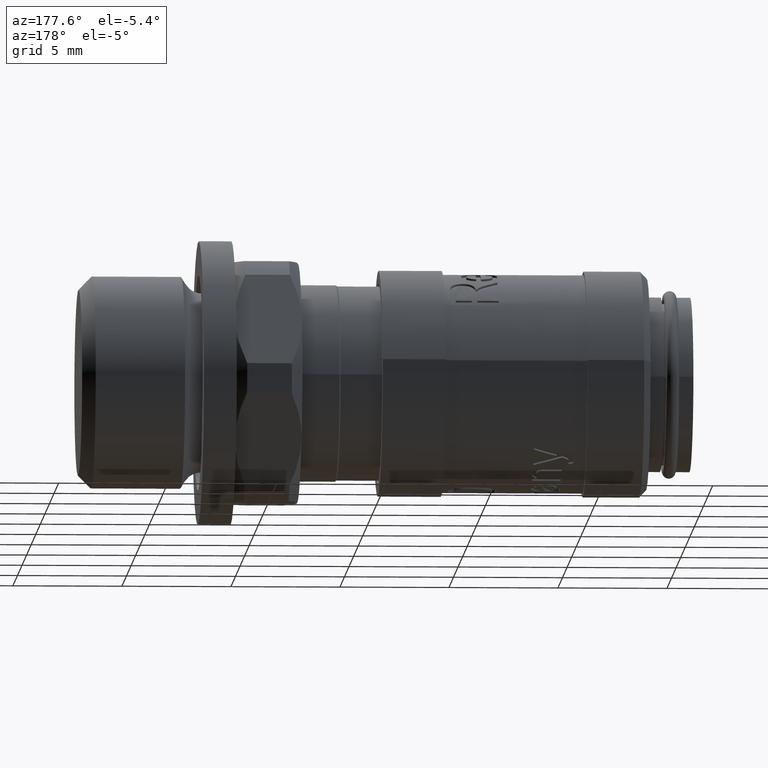
[diagram: clean part render]
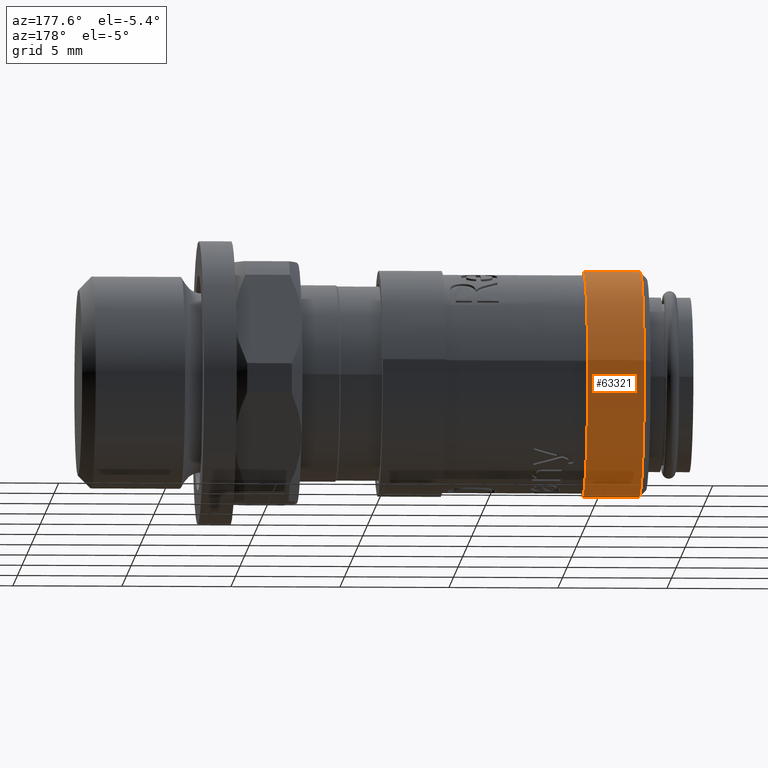
[diagram: same view with one face highlighted and labeled with its STEP entity id]
A machine part, auxiliary view. The second image highlights one B-rep face of the part: STEP entity #63321.
In plain terms, the highlighted cylindrical surface (bore or boss wall) has radius 5.175 mm, axis along (1, 0, 0).
Its self-contained STEP definition (entity closure, byte-faithful):
#63290=CARTESIAN_POINT('',(2.3,5.134121596033046,0.649169035881323));
#63291=VERTEX_POINT('',#63290);
#63292=CARTESIAN_POINT('',(2.3,0.0,0.0));
#63293=DIRECTION('',(-1.0,0.0,0.0));
#63294=DIRECTION('',(0.0,-0.99210079150397,-0.125443291957744));
#63295=AXIS2_PLACEMENT_3D('',#63292,#63293,#63294);
#63296=CIRCLE('',#63295,5.175);
#63297=EDGE_CURVE('',#63291,#63291,#63296,.T.);
#63302=CARTESIAN_POINT('',(3.45,0.0,0.0));
#63303=DIRECTION('',(1.0,0.0,0.0));
#63304=DIRECTION('',(0.0,0.99210079150397,0.125443291957744));
#63305=AXIS2_PLACEMENT_3D('',#63302,#63303,#63304);
#63306=CYLINDRICAL_SURFACE('',#63305,5.175000000000001);
#63307=CARTESIAN_POINT('',(4.900000000000001,5.134121596033046,0.649169035881323));
#63308=VERTEX_POINT('',#63307);
#63309=CARTESIAN_POINT('',(4.900000000000001,0.0,0.0));
#63310=DIRECTION('',(1.0,0.0,0.0));
#63311=DIRECTION('',(0.0,0.99210079150397,0.125443291957744));
#63312=AXIS2_PLACEMENT_3D('',#63309,#63310,#63311);
#63313=CIRCLE('',#63312,5.175);
#63314=EDGE_CURVE('',#63308,#63308,#63313,.T.);
#63315=ORIENTED_EDGE('',*,*,#63314,.F.);
#63316=EDGE_LOOP('',(#63315));
#63317=FACE_OUTER_BOUND('',#63316,.T.);
#63318=ORIENTED_EDGE('',*,*,#63297,.F.);
#63319=EDGE_LOOP('',(#63318));
#63320=FACE_BOUND('',#63319,.T.);
#63321=ADVANCED_FACE('',(#63317,#63320),#63306,.T.);